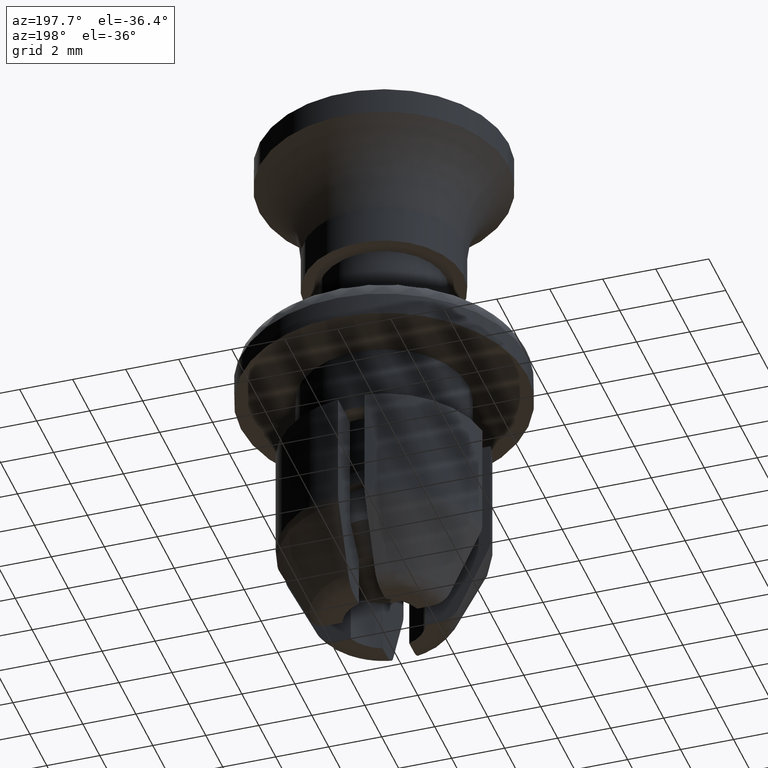
[diagram: clean part render]
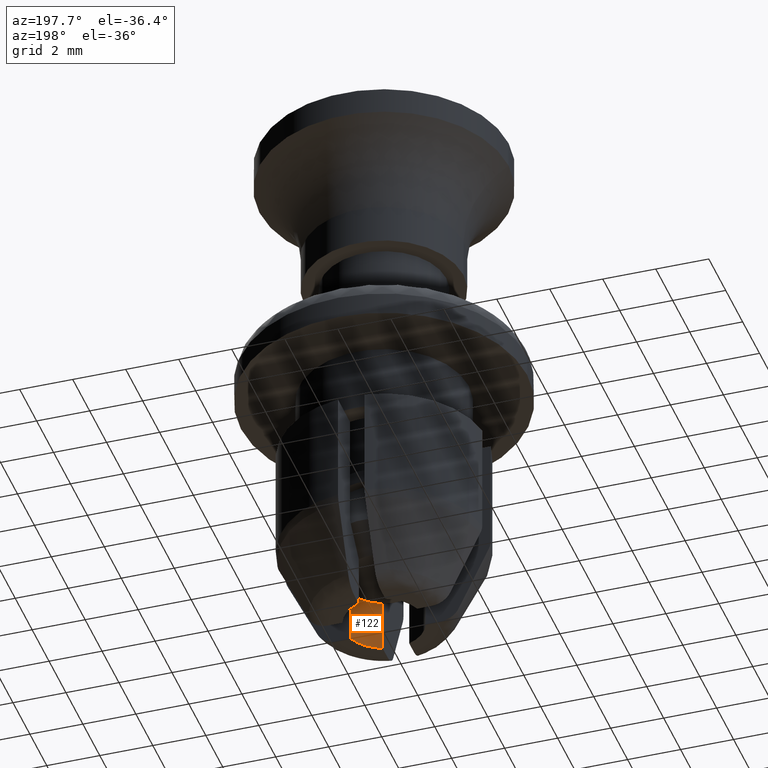
[diagram: same view with one face highlighted and labeled with its STEP entity id]
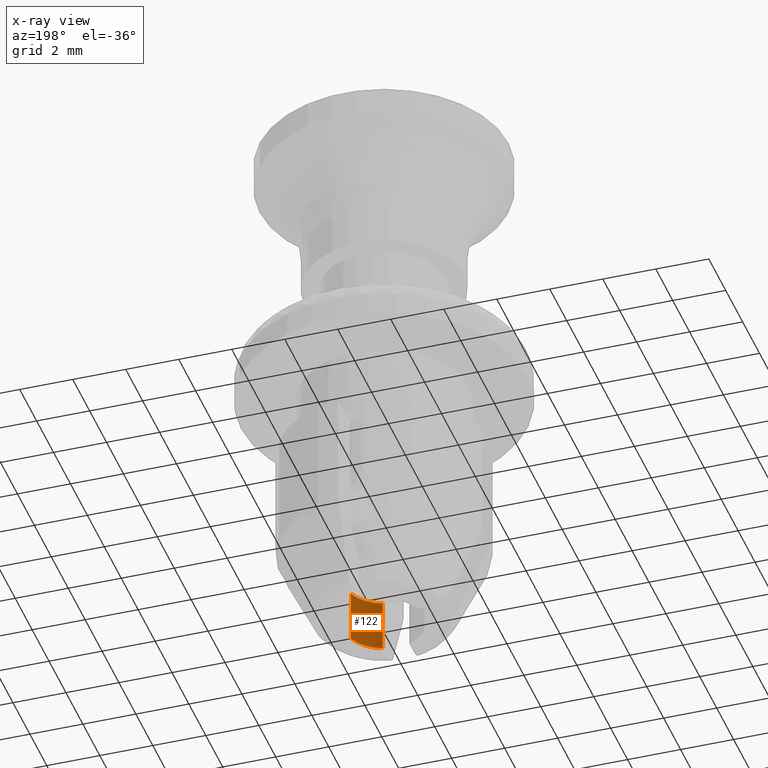
[diagram: x-ray of the same camera — body ghosted, the highlighted face saturated]
A machine part, auxiliary view. The second image highlights one B-rep face of the part: STEP entity #122.
The next image is the same camera in x-ray: the body ghosted, the highlighted face saturated — about 2% of this face is hidden behind the body in this view.
In plain terms, the highlighted cylindrical surface (partial cylindrical patch) has radius 1.5001 mm, axis along (-0, -0, -1).
Its self-contained STEP definition (entity closure, byte-faithful):
#122=ADVANCED_FACE('',(#293),#292,.F.);
#292=CYLINDRICAL_SURFACE('',#1068,1.50008149445E+00);
#293=FACE_OUTER_BOUND('',#1069,.T.);
#1065=CARTESIAN_POINT('',(0.00000000000E+00,0.00000000000E+00,-1.00450000000E+03));
#1066=DIRECTION('',(-0.00000000000E+00,-0.00000000000E+00,-1.00000000000E+00));
#1067=DIRECTION('',(-1.00000000000E+00,-0.00000000000E+00,-0.00000000000E+00));
#1068=AXIS2_PLACEMENT_3D('',#1065,#1066,#1067);
#1069=EDGE_LOOP('',(#1666,#1667,#1668,#1669));
#1666=ORIENTED_EDGE('',*,*,#2055,.T.);
#1667=ORIENTED_EDGE('',*,*,#2056,.T.);
#1668=ORIENTED_EDGE('',*,*,#2019,.T.);
#1669=ORIENTED_EDGE('',*,*,#2057,.T.);
#2019=EDGE_CURVE('',#2230,#2287,#2294,.T.);
#2055=EDGE_CURVE('',#2542,#2543,#2544,.T.);
#2056=EDGE_CURVE('',#2543,#2230,#2550,.T.);
#2057=EDGE_CURVE('',#2287,#2542,#2556,.T.);
#2230=VERTEX_POINT('',#3521);
#2287=VERTEX_POINT('',#3562);
#2294=LINE('',#3566,#3567);
#2542=VERTEX_POINT('',#3741);
#2543=VERTEX_POINT('',#3742);
#2544=LINE('',#3743,#3744);
#2550=CIRCLE('',#3749,1.50008149445E+00);
#2556=CIRCLE('',#3753,1.50008149445E+00);
#3521=CARTESIAN_POINT('',(1.41430000000E+00,-5.00000000000E-01,-9.90028188233E+00));
#3562=CARTESIAN_POINT('',(1.41430000000E+00,-5.00000000000E-01,-1.19003000000E+01));
#3566=CARTESIAN_POINT('',(1.41430000000E+00,-5.00000000000E-01,-9.90028188233E+00));
#3567=VECTOR('',#3568,2.00001811767E+00);
#3568=DIRECTION('',(0.00000000000E+00,0.00000000000E+00,-1.00000000000E+00));
#3741=CARTESIAN_POINT('',(5.00000000000E-01,-1.41430000000E+00,-1.19003000000E+01));
#3742=CARTESIAN_POINT('',(5.00000000000E-01,-1.41430000000E+00,-9.90028188233E+00));
#3743=CARTESIAN_POINT('',(5.00000000000E-01,-1.41430000000E+00,-1.19003000000E+01));
#3744=VECTOR('',#3745,2.00001811767E+00);
#3745=DIRECTION('',(0.00000000000E+00,0.00000000000E+00,1.00000000000E+00));
#3746=CARTESIAN_POINT('',(0.00000000000E+00,0.00000000000E+00,-9.90028188233E+00));
#3747=DIRECTION('',(-0.00000000000E+00,0.00000000000E+00,1.00000000000E+00));
#3748=DIRECTION('',(-1.00000000000E+00,-0.00000000000E+00,-0.00000000000E+00));
#3749=AXIS2_PLACEMENT_3D('',#3746,#3747,#3748);
#3750=CARTESIAN_POINT('',(0.00000000000E+00,0.00000000000E+00,-1.19003000000E+01));
#3751=DIRECTION('',(0.00000000000E+00,0.00000000000E+00,-1.00000000000E+00));
#3752=DIRECTION('',(-1.00000000000E+00,-0.00000000000E+00,-0.00000000000E+00));
#3753=AXIS2_PLACEMENT_3D('',#3750,#3751,#3752);